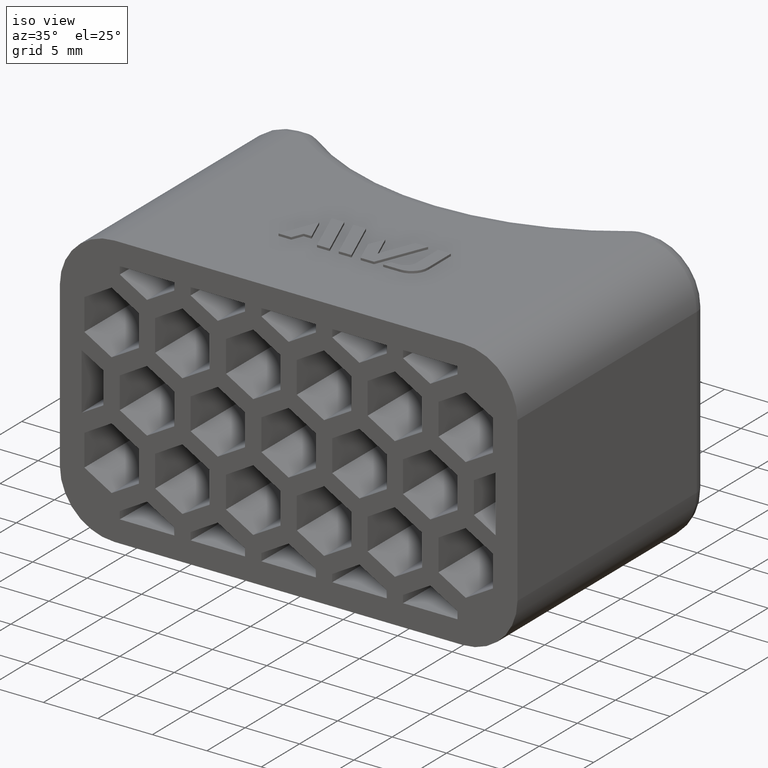
[diagram: clean part render]
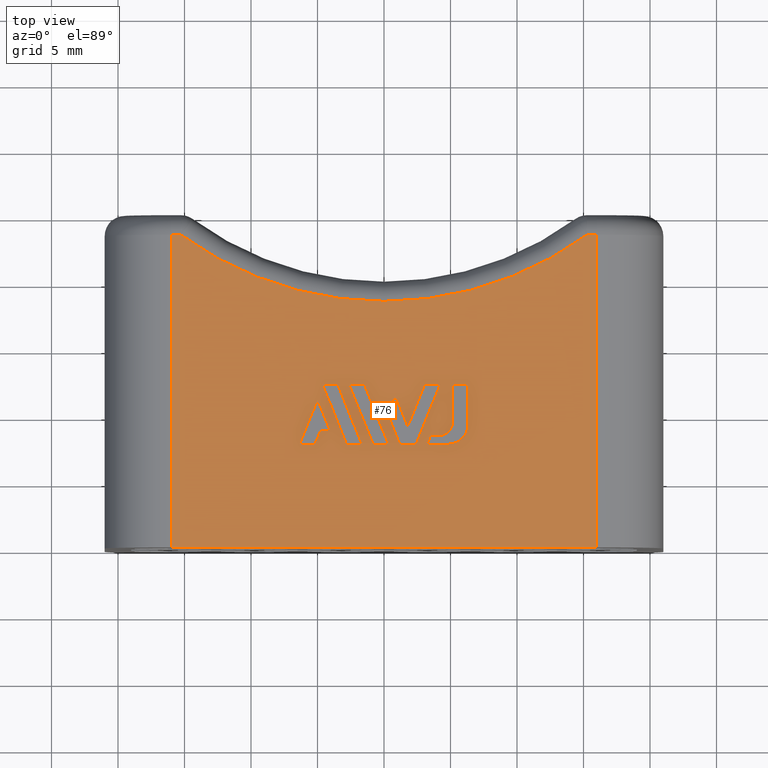
[diagram: tour spotlight — one face highlighted and labeled with its STEP entity id]
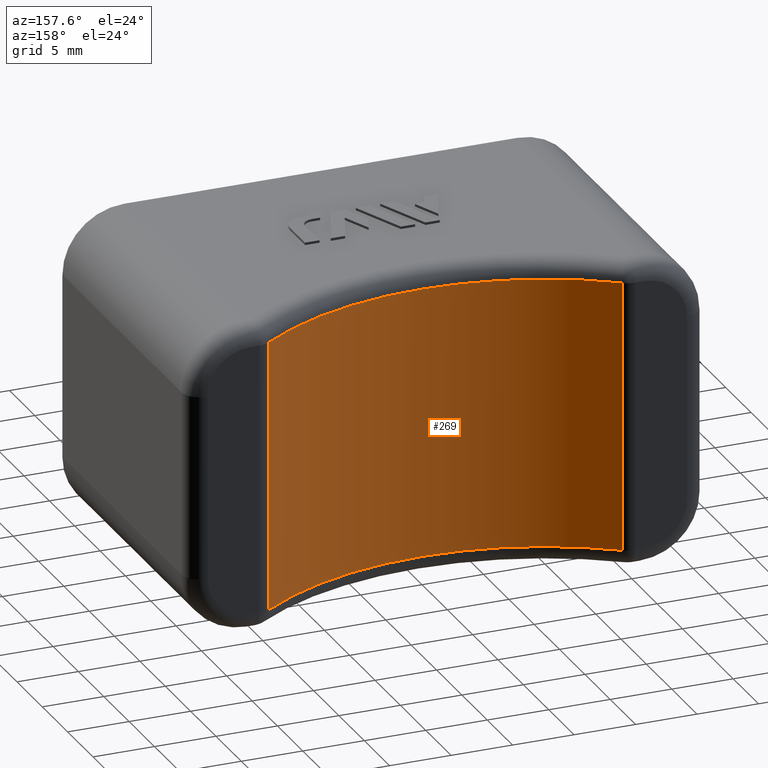
[diagram: tour spotlight — one face highlighted and labeled with its STEP entity id]
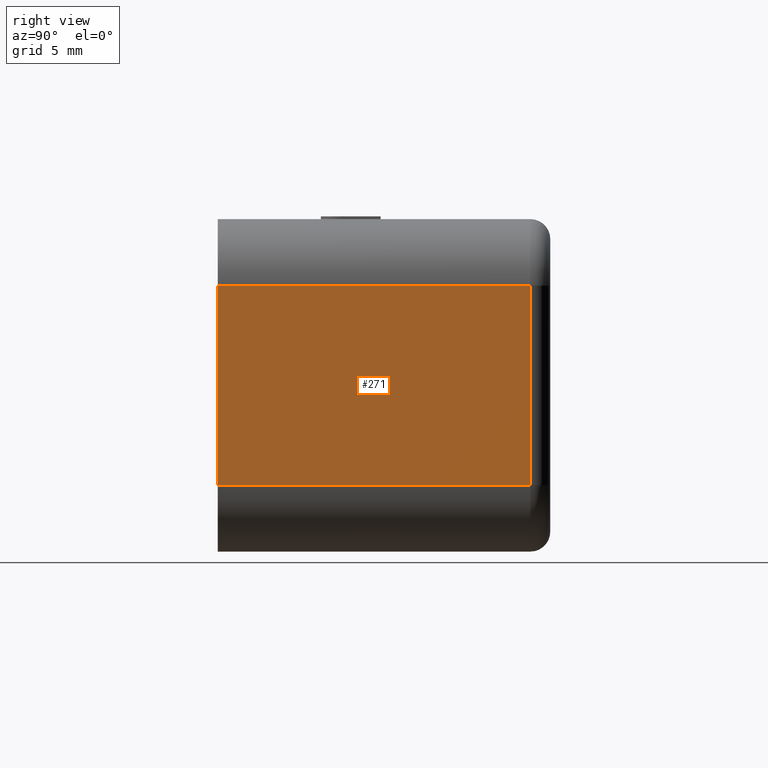
[diagram: tour spotlight — one face highlighted and labeled with its STEP entity id]
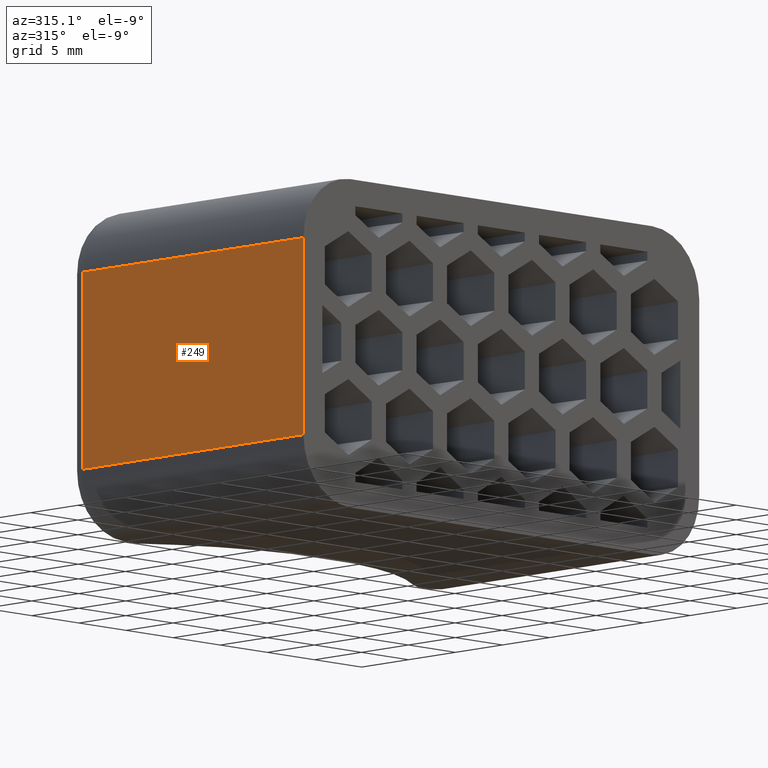
[diagram: tour spotlight — one face highlighted and labeled with its STEP entity id]
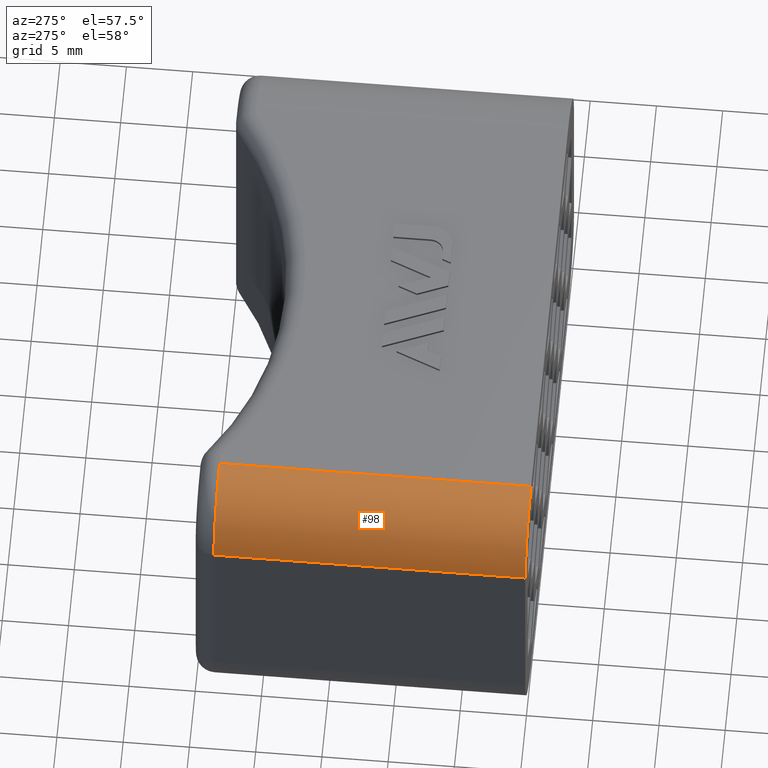
[diagram: tour spotlight — one face highlighted and labeled with its STEP entity id]
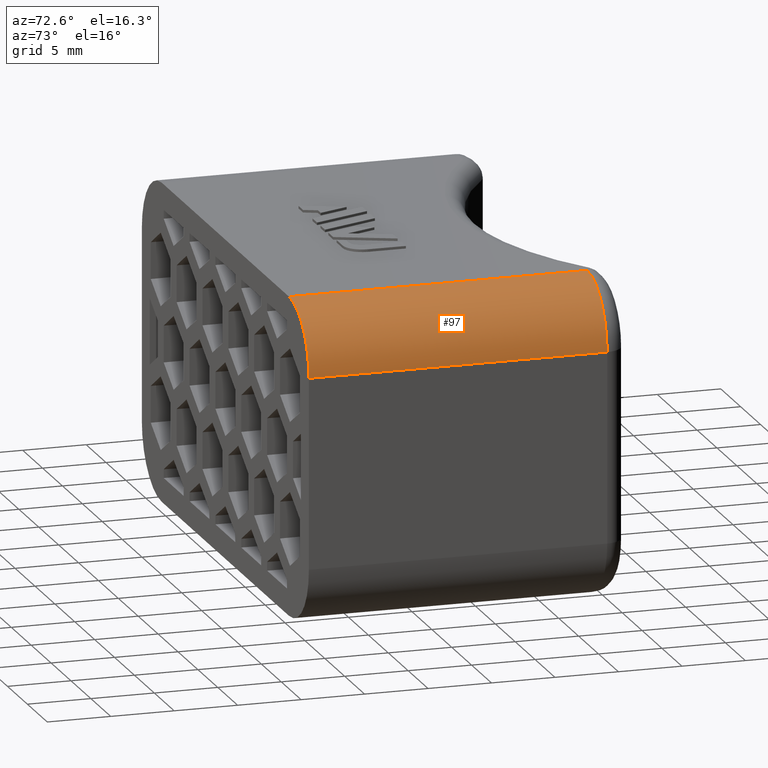
[diagram: tour spotlight — one face highlighted and labeled with its STEP entity id]
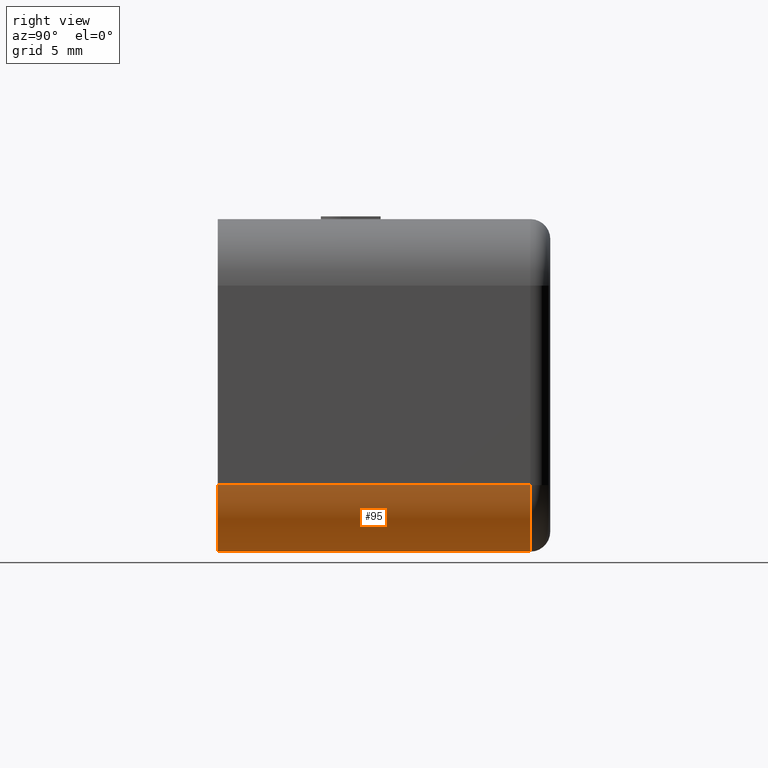
[diagram: tour spotlight — one face highlighted and labeled with its STEP entity id]
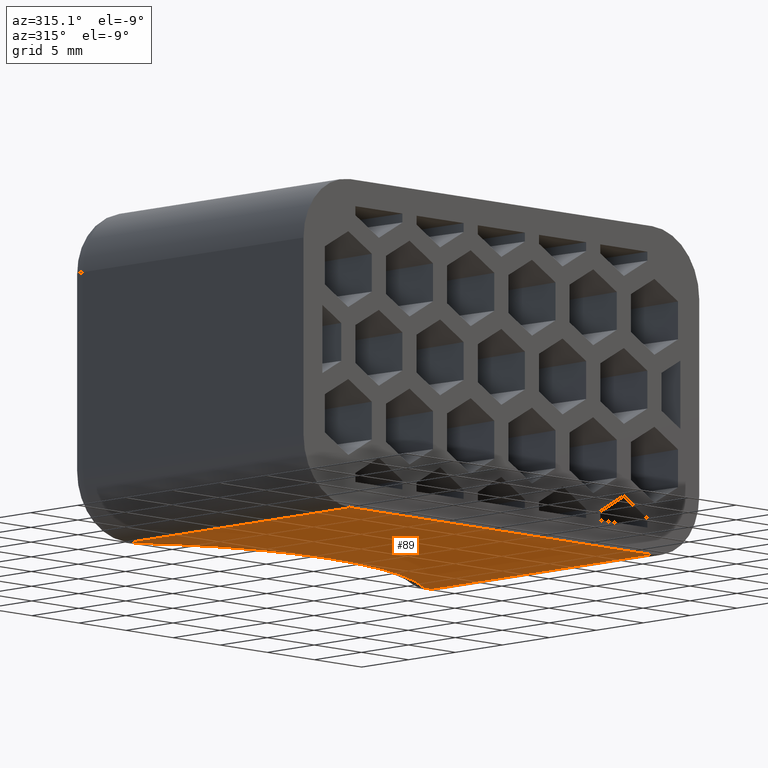
[diagram: tour spotlight — one face highlighted and labeled with its STEP entity id]
A machine part: a face-by-face anatomy tour. The part has 256 B-rep faces; the first image is the clean iso view, then the 8 largest visible faces are spotlighted one at a time (largest first), each with its STEP entity span.

Face 1 — top view, entity #76. In plain terms, the highlighted planar face has unit normal (0, 0, -1).
Definition (entity closure, byte-faithful):
#76 = ADVANCED_FACE( '', ( #363, #364, #365, #366, #367, #368 ), #369, .F. );
#363 = FACE_BOUND( '', #909, .T. );
#364 = FACE_BOUND( '', #910, .T. );
#365 = FACE_BOUND( '', #911, .T. );
#366 = FACE_BOUND( '', #912, .T. );
#367 = FACE_BOUND( '', #913, .T. );
#368 = FACE_OUTER_BOUND( '', #914, .T. );
#369 = PLANE( '', #915 );
#909 = EDGE_LOOP( '', ( #1595, #1596, #1597, #1598, #1599, #1600, #1601, #1602 ) );
#910 = EDGE_LOOP( '', ( #1603, #1604, #1605, #1606 ) );
#911 = EDGE_LOOP( '', ( #1607, #1608, #1609, #1610, #1611 ) );
#912 = EDGE_LOOP( '', ( #1612, #1613, #1614, #1615 ) );
#913 = EDGE_LOOP( '', ( #1616, #1617, #1618, #1619, #1620, #1621, #1622 ) );
#914 = EDGE_LOOP( '', ( #1623, #1624, #1625, #1626, #1627, #1628 ) );
#915 = AXIS2_PLACEMENT_3D( '', #1629, #1630, #1631 );
#1595 = ORIENTED_EDGE( '', *, *, #3640, .F. );
#1596 = ORIENTED_EDGE( '', *, *, #3641, .F. );
#1597 = ORIENTED_EDGE( '', *, *, #3642, .F. );
#1598 = ORIENTED_EDGE( '', *, *, #3643, .F. );
#1599 = ORIENTED_EDGE( '', *, *, #3644, .F. );
#1600 = ORIENTED_EDGE( '', *, *, #3645, .F. );
#1601 = ORIENTED_EDGE( '', *, *, #3646, .F. );
#1602 = ORIENTED_EDGE( '', *, *, #3647, .F. );
#1603 = ORIENTED_EDGE( '', *, *, #3648, .F. );
#1604 = ORIENTED_EDGE( '', *, *, #3649, .F. );
#1605 = ORIENTED_EDGE( '', *, *, #3650, .F. );
#1606 = ORIENTED_EDGE( '', *, *, #3651, .F. );
#1607 = ORIENTED_EDGE( '', *, *, #3652, .F. );
#1608 = ORIENTED_EDGE( '', *, *, #3653, .F. );
#1609 = ORIENTED_EDGE( '', *, *, #3654, .F. );
#1610 = ORIENTED_EDGE( '', *, *, #3655, .F. );
#1611 = ORIENTED_EDGE( '', *, *, #3656, .F. );
#1612 = ORIENTED_EDGE( '', *, *, #3657, .F. );
#1613 = ORIENTED_EDGE( '', *, *, #3658, .F. );
#1614 = ORIENTED_EDGE( '', *, *, #3659, .F. );
#1615 = ORIENTED_EDGE( '', *, *, #3660, .F. );
#1616 = ORIENTED_EDGE( '', *, *, #3661, .F. );
#1617 = ORIENTED_EDGE( '', *, *, #3662, .F. );
#1618 = ORIENTED_EDGE( '', *, *, #3663, .F. );
#1619 = ORIENTED_EDGE( '', *, *, #3664, .F. );
#1620 = ORIENTED_EDGE( '', *, *, #3665, .F. );
#1621 = ORIENTED_EDGE( '', *, *, #3666, .F. );
#1622 = ORIENTED_EDGE( '', *, *, #3667, .F. );
#1623 = ORIENTED_EDGE( '', *, *, #3668, .T. );
#1624 = ORIENTED_EDGE( '', *, *, #3669, .T. );
#1625 = ORIENTED_EDGE( '', *, *, #3670, .T. );
#1626 = ORIENTED_EDGE( '', *, *, #3636, .T. );
#1627 = ORIENTED_EDGE( '', *, *, #3671, .T. );
#1628 = ORIENTED_EDGE( '', *, *, #3672, .T. );
#1629 = CARTESIAN_POINT( '', ( 0.000000000000000, 44.3000000000000, 12.5000000000000 ) );
#1630 = DIRECTION( '', ( 0.000000000000000, 0.000000000000000, -1.00000000000000 ) );
#1631 = DIRECTION( '', ( 0.000000000000000, 1.00000000000000, 0.000000000000000 ) );
#3636 = EDGE_CURVE( '', #4441, #4439, #4442, .T. );
#3640 = EDGE_CURVE( '', #4448, #4449, #4450, .T. );
#3641 = EDGE_CURVE( '', #4451, #4448, #4452, .T. );
#3642 = EDGE_CURVE( '', #4453, #4451, #4454, .T. );
#3643 = EDGE_CURVE( '', #4455, #4453, #4456, .T. );
#3644 = EDGE_CURVE( '', #4457, #4455, #4458, .T. );
#3645 = EDGE_CURVE( '', #4459, #4457, #4460, .T. );
#3646 = EDGE_CURVE( '', #4461, #4459, #4462, .T. );
#3647 = EDGE_CURVE( '', #4449, #4461, #4463, .T. );
#3648 = EDGE_CURVE( '', #4464, #4465, #4466, .T. );
#3649 = EDGE_CURVE( '', #4467, #4464, #4468, .T. );
#3650 = EDGE_CURVE( '', #4469, #4467, #4470, .T. );
#3651 = EDGE_CURVE( '', #4465, #4469, #4471, .T. );
#3652 = EDGE_CURVE( '', #4472, #4473, #4474, .T. );
#3653 = EDGE_CURVE( '', #4475, #4472, #4476, .T. );
#3654 = EDGE_CURVE( '', #4477, #4475, #4478, .T. );
#3655 = EDGE_CURVE( '', #4479, #4477, #4480, .T. );
#3656 = EDGE_CURVE( '', #4473, #4479, #4481, .T. );
#3657 = EDGE_CURVE( '', #4482, #4483, #4484, .T. );
#3658 = EDGE_CURVE( '', #4485, #4482, #4486, .T. );
#3659 = EDGE_CURVE( '', #4487, #4485, #4488, .T. );
#3660 = EDGE_CURVE( '', #4483, #4487, #4489, .T. );
#3661 = EDGE_CURVE( '', #4490, #4491, #4492, .T. );
#3662 = EDGE_CURVE( '', #4493, #4490, #4494, .T. );
#3663 = EDGE_CURVE( '', #4495, #4493, #4496, .T. );
#3664 = EDGE_CURVE( '', #4497, #4495, #4498, .T. );
#3665 = EDGE_CURVE( '', #4499, #4497, #4500, .T. );
#3666 = EDGE_CURVE( '', #4501, #4499, #4502, .T. );
#3667 = EDGE_CURVE( '', #4491, #4501, #4503, .T. );
#3668 = EDGE_CURVE( '', #4504, #4505, #4506, .T. );
#3669 = EDGE_CURVE( '', #4505, #4507, #4508, .T. );
#3670 = EDGE_CURVE( '', #4507, #4441, #4509, .T. );
#3671 = EDGE_CURVE( '', #4439, #4510, #4511, .T. );
#3672 = EDGE_CURVE( '', #4510, #4504, #4512, .T. );
#4439 = VERTEX_POINT( '', #5661 );
#4441 = VERTEX_POINT( '', #5663 );
#4442 = LINE( '', #5664, #5665 );
#4448 = VERTEX_POINT( '', #5672 );
#4449 = VERTEX_POINT( '', #5673 );
#4450 = CIRCLE( '', #5674, 1.50000000000000 );
#4451 = VERTEX_POINT( '', #5675 );
#4452 = LINE( '', #5676, #5677 );
#4453 = VERTEX_POINT( '', #5678 );
#4454 = LINE( '', #5679, #5680 );
#4455 = VERTEX_POINT( '', #5681 );
#4456 = LINE( '', #5682, #5683 );
#4457 = VERTEX_POINT( '', #5684 );
#4458 = CIRCLE( '', #5685, 0.999999999999997 );
#4459 = VERTEX_POINT( '', #5686 );
#4460 = LINE( '', #5687, #5688 );
#4461 = VERTEX_POINT( '', #5689 );
#4462 = LINE( '', #5690, #5691 );
#4463 = LINE( '', #5692, #5693 );
#4464 = VERTEX_POINT( '', #5694 );
#4465 = VERTEX_POINT( '', #5695 );
#4466 = LINE( '', #5696, #5697 );
#4467 = VERTEX_POINT( '', #5698 );
#4468 = LINE( '', #5699, #5700 );
#4469 = VERTEX_POINT( '', #5701 );
#4470 = LINE( '', #5702, #5703 );
#4471 = LINE( '', #5704, #5705 );
#4472 = VERTEX_POINT( '', #5706 );
#4473 = VERTEX_POINT( '', #5707 );
#4474 = LINE( '', #5708, #5709 );
#4475 = VERTEX_POINT( '', #5710 );
#4476 = LINE( '', #5711, #5712 );
#4477 = VERTEX_POINT( '', #5713 );
#4478 = LINE( '', #5714, #5715 );
#4479 = VERTEX_POINT( '', #5716 );
#4480 = LINE( '', #5717, #5718 );
#4481 = LINE( '', #5719, #5720 );
#4482 = VERTEX_POINT( '', #5721 );
#4483 = VERTEX_POINT( '', #5722 );
#4484 = LINE( '', #5723, #5724 );
#4485 = VERTEX_POINT( '', #5725 );
#4486 = LINE( '', #5726, #5727 );
#4487 = VERTEX_POINT( '', #5728 );
#4488 = LINE( '', #5729, #5730 );
#4489 = LINE( '', #5731, #5732 );
#4490 = VERTEX_POINT( '', #5733 );
#4491 = VERTEX_POINT( '', #5734 );
#4492 = LINE( '', #5735, #5736 );
#4493 = VERTEX_POINT( '', #5737 );
#4494 = LINE( '', #5738, #5739 );
#4495 = VERTEX_POINT( '', #5740 );
#4496 = LINE( '', #5741, #5742 );
#4497 = VERTEX_POINT( '', #5743 );
#4498 = LINE( '', #5744, #5745 );
#4499 = VERTEX_POINT( '', #5746 );
#4500 = LINE( '', #5747, #5748 );
#4501 = VERTEX_POINT( '', #5749 );
#4502 = LINE( '', #5750, #5751 );
#4503 = LINE( '', #5752, #5753 );
#4504 = VERTEX_POINT( '', #5754 );
#4505 = VERTEX_POINT( '', #5755 );
#4506 = CIRCLE( '', #5756, 25.8000000000000 );
#4507 = VERTEX_POINT( '', #5757 );
#4508 = LINE( '', #5758, #5759 );
#4509 = LINE( '', #5760, #5761 );
#4510 = VERTEX_POINT( '', #5762 );
#4511 = LINE( '', #5763, #5764 );
#4512 = LINE( '', #5765, #5766 );
#5661 = CARTESIAN_POINT( '', ( 16.0000000000000, -6.93889390390723E-015, 12.5000000000000 ) );
#5663 = CARTESIAN_POINT( '', ( -16.0000000000000, -6.93889390390723E-015, 12.5000000000000 ) );
#5664 = CARTESIAN_POINT( '', ( -46.0000000000000, -6.93889390390723E-015, 12.5000000000000 ) );
#5665 = VECTOR( '', #6910, 1000.00000000000 );
#5672 = CARTESIAN_POINT( '', ( 4.81907477182051, 7.75000000000000, 12.5000000000000 ) );
#5673 = CARTESIAN_POINT( '', ( 6.31907477182050, 9.25000000000000, 12.5000000000000 ) );
#5674 = AXIS2_PLACEMENT_3D( '', #6918, #6919, #6920 );
#5675 = CARTESIAN_POINT( '', ( 3.24098335256638, 7.75000000000000, 12.5000000000000 ) );
#5676 = CARTESIAN_POINT( '', ( 3.24098335256638, 7.75000000000000, 12.5000000000000 ) );
#5677 = VECTOR( '', #6921, 1000.00000000000 );
#5678 = CARTESIAN_POINT( '', ( 3.50517861036021, 8.40390620930045, 12.5000000000000 ) );
#5679 = CARTESIAN_POINT( '', ( 3.50517861036022, 8.40390620930045, 12.5000000000000 ) );
#5680 = VECTOR( '', #6922, 1000.00000000000 );
#5681 = CARTESIAN_POINT( '', ( 4.14390185782692, 8.40390620930043, 12.5000000000000 ) );
#5682 = CARTESIAN_POINT( '', ( 4.14390185782692, 8.40390620930045, 12.5000000000000 ) );
#5683 = VECTOR( '', #6923, 1000.00000000000 );
#5684 = CARTESIAN_POINT( '', ( 5.14390185782692, 9.40390620930043, 12.5000000000000 ) );
#5685 = AXIS2_PLACEMENT_3D( '', #6924, #6925, #6926 );
#5686 = CARTESIAN_POINT( '', ( 5.14390185782692, 12.2467077130809, 12.5000000000000 ) );
#5687 = CARTESIAN_POINT( '', ( 5.14390185782692, 12.2467077130809, 12.5000000000000 ) );
#5688 = VECTOR( '', #6927, 1000.00000000000 );
#5689 = CARTESIAN_POINT( '', ( 6.31907477182050, 12.2467077130809, 12.5000000000000 ) );
#5690 = CARTESIAN_POINT( '', ( 6.31907477182050, 12.2467077130809, 12.5000000000000 ) );
#5691 = VECTOR( '', #6928, 1000.00000000000 );
#5692 = CARTESIAN_POINT( '', ( 6.31907477182050, 9.25000000000000, 12.5000000000000 ) );
#5693 = VECTOR( '', #6929, 1000.00000000000 );
#5694 = CARTESIAN_POINT( '', ( 0.340474419546954, 7.75000000000000, 12.5000000000000 ) );
#5695 = CARTESIAN_POINT( '', ( -1.47650786620465, 12.2467077130809, 12.5000000000000 ) );
#5696 = CARTESIAN_POINT( '', ( 0.340474419546954, 7.75000000000000, 12.5000000000000 ) );
#5697 = VECTOR( '', #6930, 1000.00000000000 );
#5698 = CARTESIAN_POINT( '', ( -0.821505279051991, 7.75000000000000, 12.5000000000000 ) );
#5699 = CARTESIAN_POINT( '', ( -0.821505279051992, 7.75000000000000, 12.5000000000000 ) );
#5700 = VECTOR( '', #6931, 1000.00000000000 );
#5701 = CARTESIAN_POINT( '', ( -2.63848756480360, 12.2467077130809, 12.5000000000000 ) );
#5702 = CARTESIAN_POINT( '', ( -2.63848756480360, 12.2467077130809, 12.5000000000000 ) );
#5703 = VECTOR( '', #6932, 1000.00000000000 );
#5704 = CARTESIAN_POINT( '', ( -1.47650786620465, 12.2467077130809, 12.5000000000000 ) );
#5705 = VECTOR( '', #6933, 1000.00000000000 );
#5706 = CARTESIAN_POINT( '', ( -5.19199839633592, 7.75000000000000, 12.5000000000000 ) );
#5707 = CARTESIAN_POINT( '', ( -4.77208448722876, 8.78856753415103, 12.5000000000000 ) );
#5708 = CARTESIAN_POINT( '', ( -5.19199839633592, 7.75000000000000, 12.5000000000000 ) );
#5709 = VECTOR( '', #6934, 1000.00000000000 );
#5710 = CARTESIAN_POINT( '', ( -6.35364000000000, 7.75000000000000, 12.5000000000000 ) );
#5711 = CARTESIAN_POINT( '', ( -6.35364000000000, 7.75000000000000, 12.5000000000000 ) );
#5712 = VECTOR( '', #6935, 1000.00000000000 );
#5713 = CARTESIAN_POINT( '', ( -4.99163582471184, 11.1215127433957, 12.5000000000000 ) );
#5714 = CARTESIAN_POINT( '', ( -4.99163582471184, 11.1215127433957, 12.5000000000000 ) );
#5715 = VECTOR( '', #6936, 1000.00000000000 );
#5716 = CARTESIAN_POINT( '', ( -4.04950047920620, 8.78856753415103, 12.5000000000000 ) );
#5717 = CARTESIAN_POINT( '', ( -4.04950047920620, 8.78856753415103, 12.5000000000000 ) );
#5718 = VECTOR( '', #6937, 1000.00000000000 );
#5719 = CARTESIAN_POINT( '', ( -4.77208448722876, 8.78856753415103, 12.5000000000000 ) );
#5720 = VECTOR( '', #6938, 1000.00000000000 );
#5721 = CARTESIAN_POINT( '', ( -1.65762156620353, 7.75000000000000, 12.5000000000000 ) );
#5722 = CARTESIAN_POINT( '', ( -3.47460385195514, 12.2467077130809, 12.5000000000000 ) );
#5723 = CARTESIAN_POINT( '', ( -1.65762156620353, 7.75000000000000, 12.5000000000000 ) );
#5724 = VECTOR( '', #6939, 1000.00000000000 );
#5725 = CARTESIAN_POINT( '', ( -2.81951861937395, 7.75000000000000, 12.5000000000000 ) );
#5726 = CARTESIAN_POINT( '', ( -2.81951861937395, 7.75000000000000, 12.5000000000000 ) );
#5727 = VECTOR( '', #6940, 1000.00000000000 );
#5728 = CARTESIAN_POINT( '', ( -4.63624545561922, 12.2467077130809, 12.5000000000000 ) );
#5729 = CARTESIAN_POINT( '', ( -4.63624545561922, 12.2467077130809, 12.5000000000000 ) );
#5730 = VECTOR( '', #6941, 1000.00000000000 );
#5731 = CARTESIAN_POINT( '', ( -3.47460385195514, 12.2467077130809, 12.5000000000000 ) );
#5732 = VECTOR( '', #6942, 1000.00000000000 );
#5733 = CARTESIAN_POINT( '', ( 2.40489711829795, 7.75000000000000, 12.5000000000000 ) );
#5734 = CARTESIAN_POINT( '', ( 4.22159390166011, 12.2467077130809, 12.5000000000000 ) );
#5735 = CARTESIAN_POINT( '', ( 2.40489711829795, 7.75000000000000, 12.5000000000000 ) );
#5736 = VECTOR( '', #6943, 1000.00000000000 );
#5737 = CARTESIAN_POINT( '', ( 1.17656065381540, 7.75000000000000, 12.5000000000000 ) );
#5738 = CARTESIAN_POINT( '', ( 1.17656065381540, 7.75000000000000, 12.5000000000000 ) );
#5739 = VECTOR( '', #6944, 1000.00000000000 );
#5740 = CARTESIAN_POINT( '', ( 0.250796616378179, 10.0409463051131, 12.5000000000000 ) );
#5741 = CARTESIAN_POINT( '', ( 0.250796616378178, 10.0409463051131, 12.5000000000000 ) );
#5742 = VECTOR( '', #6945, 1000.00000000000 );
#5743 = CARTESIAN_POINT( '', ( 0.831793978898428, 11.4792171844870, 12.5000000000000 ) );
#5744 = CARTESIAN_POINT( '', ( 0.831793978898429, 11.4792171844869, 12.5000000000000 ) );
#5745 = VECTOR( '', #6946, 1000.00000000000 );
#5746 = CARTESIAN_POINT( '', ( 1.79060116130350, 9.10619645562918, 12.5000000000000 ) );
#5747 = CARTESIAN_POINT( '', ( 1.79060116130350, 9.10619645562919, 12.5000000000000 ) );
#5748 = VECTOR( '', #6947, 1000.00000000000 );
#5749 = CARTESIAN_POINT( '', ( 3.05959917661961, 12.2467077130809, 12.5000000000000 ) );
#5750 = CARTESIAN_POINT( '', ( 3.05959917661961, 12.2467077130809, 12.5000000000000 ) );
#5751 = VECTOR( '', #6948, 1000.00000000000 );
#5752 = CARTESIAN_POINT( '', ( 4.22159390166011, 12.2467077130809, 12.5000000000000 ) );
#5753 = VECTOR( '', #6949, 1000.00000000000 );
#5754 = CARTESIAN_POINT( '', ( 15.2643375224738, 23.5000000000000, 12.5000000000000 ) );
#5755 = CARTESIAN_POINT( '', ( -15.2643375224738, 23.5000000000000, 12.5000000000000 ) );
#5756 = AXIS2_PLACEMENT_3D( '', #6950, #6951, #6952 );
#5757 = CARTESIAN_POINT( '', ( -16.0000000000000, 23.5000000000000, 12.5000000000000 ) );
#5758 = CARTESIAN_POINT( '', ( -16.0000000000000, 23.5000000000000, 12.5000000000000 ) );
#5759 = VECTOR( '', #6953, 1000.00000000000 );
#5760 = CARTESIAN_POINT( '', ( -16.0000000000000, 1.99999999999999, 12.5000000000000 ) );
#5761 = VECTOR( '', #6954, 1000.00000000000 );
#5762 = CARTESIAN_POINT( '', ( 16.0000000000000, 23.5000000000000, 12.5000000000000 ) );
#5763 = CARTESIAN_POINT( '', ( 16.0000000000000, 25.0000000000000, 12.5000000000000 ) );
#5764 = VECTOR( '', #6955, 1000.00000000000 );
#5765 = CARTESIAN_POINT( '', ( 14.7648230602334, 23.5000000000000, 12.5000000000000 ) );
#5766 = VECTOR( '', #6956, 1000.00000000000 );
#6910 = DIRECTION( '', ( 1.00000000000000, 0.000000000000000, 0.000000000000000 ) );
#6918 = CARTESIAN_POINT( '', ( 4.81907477182050, 9.25000000000000, 12.5000000000000 ) );
#6919 = DIRECTION( '', ( 0.000000000000000, 0.000000000000000, 1.00000000000000 ) );
#6920 = DIRECTION( '', ( 0.000000000000000, -1.00000000000000, 0.000000000000000 ) );
#6921 = DIRECTION( '', ( 1.00000000000000, 0.000000000000000, 0.000000000000000 ) );
#6922 = DIRECTION( '', ( -0.374606593415912, -0.927183854566787, 0.000000000000000 ) );
#6923 = DIRECTION( '', ( -1.00000000000000, 0.000000000000000, 0.000000000000000 ) );
#6924 = CARTESIAN_POINT( '', ( 4.14390185782692, 9.40390620930043, 12.5000000000000 ) );
#6925 = DIRECTION( '', ( 0.000000000000000, 0.000000000000000, -1.00000000000000 ) );
#6926 = DIRECTION( '', ( 1.00000000000000, 0.000000000000000, 0.000000000000000 ) );
#6927 = DIRECTION( '', ( -6.07153216591882E-017, -1.00000000000000, 0.000000000000000 ) );
#6928 = DIRECTION( '', ( -1.00000000000000, 0.000000000000000, 0.000000000000000 ) );
#6929 = DIRECTION( '', ( 6.07153216591882E-017, 1.00000000000000, 0.000000000000000 ) );
#6930 = DIRECTION( '', ( -0.374641058409019, 0.927169929060563, 0.000000000000000 ) );
#6931 = DIRECTION( '', ( 1.00000000000000, -2.22044604925031E-016, 0.000000000000000 ) );
#6932 = DIRECTION( '', ( 0.374641058409019, -0.927169929060563, 0.000000000000000 ) );
#6933 = DIRECTION( '', ( -1.00000000000000, 2.22044604925031E-016, 0.000000000000000 ) );
#6934 = DIRECTION( '', ( 0.374840934415178, 0.927089140205383, 0.000000000000000 ) );
#6935 = DIRECTION( '', ( 1.00000000000000, 5.55111512312578E-017, 0.000000000000000 ) );
#6936 = DIRECTION( '', ( -0.374565126786346, -0.927200607094025, 0.000000000000000 ) );
#6937 = DIRECTION( '', ( -0.374457717202846, 0.927243990558706, 0.000000000000000 ) );
#6938 = DIRECTION( '', ( 1.00000000000000, 0.000000000000000, 0.000000000000000 ) );
#6939 = DIRECTION( '', ( -0.374641058409019, 0.927169929060563, 0.000000000000000 ) );
#6940 = DIRECTION( '', ( 1.00000000000000, 0.000000000000000, 0.000000000000000 ) );
#6941 = DIRECTION( '', ( 0.374595778945159, -0.927188223823226, 0.000000000000000 ) );
#6942 = DIRECTION( '', ( -1.00000000000000, 0.000000000000000, 0.000000000000000 ) );
#6943 = DIRECTION( '', ( 0.374590451773198, 0.927190376050330, 0.000000000000000 ) );
#6944 = DIRECTION( '', ( 1.00000000000000, 0.000000000000000, 0.000000000000000 ) );
#6945 = DIRECTION( '', ( 0.374662832411421, -0.927161130553612, 0.000000000000000 ) );
#6946 = DIRECTION( '', ( -0.374550179126525, -0.927206645422846, 0.000000000000000 ) );
#6947 = DIRECTION( '', ( -0.374621565025663, 0.927177805503196, 0.000000000000000 ) );
#6948 = DIRECTION( '', ( -0.374644435760503, -0.927168564368796, 0.000000000000000 ) );
#6949 = DIRECTION( '', ( -1.00000000000000, 0.000000000000000, 0.000000000000000 ) );
#6950 = CARTESIAN_POINT( '', ( 0.000000000000000, 44.3000000000000, 12.5000000000000 ) );
#6951 = DIRECTION( '', ( 0.000000000000000, 0.000000000000000, -1.00000000000000 ) );
#6952 = DIRECTION( '', ( -1.00000000000000, 0.000000000000000, 0.000000000000000 ) );
#6953 = DIRECTION( '', ( -1.00000000000000, 0.000000000000000, 0.000000000000000 ) );
#6954 = DIRECTION( '', ( -6.93889390390723E-017, -1.00000000000000, 0.000000000000000 ) );
#6955 = DIRECTION( '', ( 6.93889390390723E-017, 1.00000000000000, 0.000000000000000 ) );
#6956 = DIRECTION( '', ( -1.00000000000000, 0.000000000000000, 0.000000000000000 ) );

Face 2 — auxiliary view, entity #269. In plain terms, the highlighted cylindrical surface (partial cylindrical patch) has radius 24.3 mm, axis along (0, 0, -1).
Definition (entity closure, byte-faithful):
#269 = ADVANCED_FACE( '', ( #754 ), #755, .F. );
#754 = FACE_OUTER_BOUND( '', #1300, .T. );
#755 = CYLINDRICAL_SURFACE( '', #1301, 24.3000000000000 );
#1300 = EDGE_LOOP( '', ( #3004, #3005, #3006, #3007 ) );
#1301 = AXIS2_PLACEMENT_3D( '', #3008, #3009, #3010 );
#3004 = ORIENTED_EDGE( '', *, *, #3705, .T. );
#3005 = ORIENTED_EDGE( '', *, *, #3713, .T. );
#3006 = ORIENTED_EDGE( '', *, *, #4049, .T. );
#3007 = ORIENTED_EDGE( '', *, *, #4050, .T. );
#3008 = CARTESIAN_POINT( '', ( 0.000000000000000, 44.3000000000000, -12.5000000000000 ) );
#3009 = DIRECTION( '', ( 0.000000000000000, 0.000000000000000, -1.00000000000000 ) );
#3010 = DIRECTION( '', ( 0.000000000000000, -1.00000000000000, 0.000000000000000 ) );
#3705 = EDGE_CURVE( '', #4561, #4563, #4565, .T. );
#3713 = EDGE_CURVE( '', #4563, #4574, #4576, .T. );
#4049 = EDGE_CURVE( '', #4574, #5082, #5083, .F. );
#4050 = EDGE_CURVE( '', #5082, #4561, #5084, .F. );
#4561 = VERTEX_POINT( '', #5836 );
#4563 = VERTEX_POINT( '', #5838 );
#4565 = CIRCLE( '', #5840, 24.3000000000000 );
#4574 = VERTEX_POINT( '', #5850 );
#4576 = LINE( '', #5852, #5853 );
#5082 = VERTEX_POINT( '', #6606 );
#5083 = CIRCLE( '', #6607, 24.3000000000000 );
#5084 = LINE( '', #6608, #6609 );
#5836 = CARTESIAN_POINT( '', ( 14.3768760386090, 24.7093023255814, -11.0000000000000 ) );
#5838 = CARTESIAN_POINT( '', ( -14.3768760386090, 24.7093023255814, -11.0000000000000 ) );
#5840 = AXIS2_PLACEMENT_3D( '', #7011, #7012, #7013 );
#5850 = CARTESIAN_POINT( '', ( -14.3768760386090, 24.7093023255814, 11.0000000000000 ) );
#5852 = CARTESIAN_POINT( '', ( -14.3768760386090, 24.7093023255814, -12.5000000000000 ) );
#5853 = VECTOR( '', #7033, 1000.00000000000 );
#6606 = CARTESIAN_POINT( '', ( 14.3768760386090, 24.7093023255814, 11.0000000000000 ) );
#6607 = AXIS2_PLACEMENT_3D( '', #7545, #7546, #7547 );
#6608 = CARTESIAN_POINT( '', ( 14.3768760386090, 24.7093023255814, -12.5000000000000 ) );
#6609 = VECTOR( '', #7548, 1000.00000000000 );
#7011 = CARTESIAN_POINT( '', ( 0.000000000000000, 44.3000000000000, -11.0000000000000 ) );
#7012 = DIRECTION( '', ( 0.000000000000000, 0.000000000000000, -1.00000000000000 ) );
#7013 = DIRECTION( '', ( -1.00000000000000, 0.000000000000000, 0.000000000000000 ) );
#7033 = DIRECTION( '', ( 0.000000000000000, 0.000000000000000, 1.00000000000000 ) );
#7545 = CARTESIAN_POINT( '', ( 0.000000000000000, 44.3000000000000, 11.0000000000000 ) );
#7546 = DIRECTION( '', ( 0.000000000000000, 0.000000000000000, -1.00000000000000 ) );
#7547 = DIRECTION( '', ( -1.00000000000000, 0.000000000000000, 0.000000000000000 ) );
#7548 = DIRECTION( '', ( 0.000000000000000, 0.000000000000000, 1.00000000000000 ) );

Face 3 — right view, entity #271. In plain terms, the highlighted planar face has unit normal (1, -0, 0).
Definition (entity closure, byte-faithful):
#271 = ADVANCED_FACE( '', ( #758 ), #759, .T. );
#758 = FACE_OUTER_BOUND( '', #1304, .T. );
#759 = PLANE( '', #1305 );
#1304 = EDGE_LOOP( '', ( #3020, #3021, #3022, #3023 ) );
#1305 = AXIS2_PLACEMENT_3D( '', #3024, #3025, #3026 );
#3020 = ORIENTED_EDGE( '', *, *, #3716, .T. );
#3021 = ORIENTED_EDGE( '', *, *, #4057, .T. );
#3022 = ORIENTED_EDGE( '', *, *, #3718, .T. );
#3023 = ORIENTED_EDGE( '', *, *, #3634, .F. );
#3024 = CARTESIAN_POINT( '', ( 21.0000000000000, 1.99999999999999, -12.5000000000000 ) );
#3025 = DIRECTION( '', ( 1.00000000000000, -6.93889390390723E-017, 0.000000000000000 ) );
#3026 = DIRECTION( '', ( -6.93889390390723E-017, -1.00000000000000, 0.000000000000000 ) );
#3634 = EDGE_CURVE( '', #4435, #4437, #4438, .T. );
#3716 = EDGE_CURVE( '', #4435, #4578, #4580, .T. );
#3718 = EDGE_CURVE( '', #4582, #4437, #4583, .F. );
#4057 = EDGE_CURVE( '', #4578, #4582, #5097, .T. );
#4435 = VERTEX_POINT( '', #5656 );
#4437 = VERTEX_POINT( '', #5658 );
#4438 = LINE( '', #5659, #5660 );
#4578 = VERTEX_POINT( '', #5856 );
#4580 = LINE( '', #5858, #5859 );
#4582 = VERTEX_POINT( '', #5862 );
#4583 = LINE( '', #5863, #5864 );
#5097 = LINE( '', #6626, #6627 );
#5656 = CARTESIAN_POINT( '', ( 21.0000000000000, -6.93889390390723E-015, -7.50000000000001 ) );
#5658 = CARTESIAN_POINT( '', ( 21.0000000000000, 0.000000000000000, 7.50000000000002 ) );
#5659 = CARTESIAN_POINT( '', ( 21.0000000000000, -6.93889390390723E-015, -12.5000000000000 ) );
#5660 = VECTOR( '', #6906, 1000.00000000000 );
#5856 = CARTESIAN_POINT( '', ( 21.0000000000000, 23.5000000000000, -7.50000000000000 ) );
#5858 = CARTESIAN_POINT( '', ( 21.0000000000000, 1.99999999999999, -7.50000000000000 ) );
#5859 = VECTOR( '', #7038, 1000.00000000000 );
#5862 = CARTESIAN_POINT( '', ( 21.0000000000000, 23.5000000000000, 7.50000000000000 ) );
#5863 = CARTESIAN_POINT( '', ( 21.0000000000000, 1.99999999999999, 7.50000000000000 ) );
#5864 = VECTOR( '', #7040, 1000.00000000000 );
#6626 = CARTESIAN_POINT( '', ( 21.0000000000000, 23.5000000000000, -12.5000000000000 ) );
#6627 = VECTOR( '', #7559, 1000.00000000000 );
#6906 = DIRECTION( '', ( 2.95286543775261E-032, 0.000000000000000, 1.00000000000000 ) );
#7038 = DIRECTION( '', ( 6.93889390390723E-017, 1.00000000000000, 0.000000000000000 ) );
#7040 = DIRECTION( '', ( 6.93889390390723E-017, 1.00000000000000, 0.000000000000000 ) );
#7559 = DIRECTION( '', ( 0.000000000000000, 0.000000000000000, 1.00000000000000 ) );

Face 4 — auxiliary view, entity #249. In plain terms, the highlighted planar face has unit normal (-1, 0, 0).
Definition (entity closure, byte-faithful):
#249 = ADVANCED_FACE( '', ( #714 ), #715, .T. );
#714 = FACE_OUTER_BOUND( '', #1260, .T. );
#715 = PLANE( '', #1261 );
#1260 = EDGE_LOOP( '', ( #2851, #2852, #2853, #2854 ) );
#1261 = AXIS2_PLACEMENT_3D( '', #2855, #2856, #2857 );
#2851 = ORIENTED_EDGE( '', *, *, #3720, .T. );
#2852 = ORIENTED_EDGE( '', *, *, #3692, .T. );
#2853 = ORIENTED_EDGE( '', *, *, #3717, .T. );
#2854 = ORIENTED_EDGE( '', *, *, #3638, .F. );
#2855 = CARTESIAN_POINT( '', ( -21.0000000000000, 25.0000000000000, -12.5000000000000 ) );
#2856 = DIRECTION( '', ( -1.00000000000000, 6.93889390390723E-017, 0.000000000000000 ) );
#2857 = DIRECTION( '', ( 6.93889390390723E-017, 1.00000000000000, 0.000000000000000 ) );
#3638 = EDGE_CURVE( '', #4443, #4445, #4446, .T. );
#3692 = EDGE_CURVE( '', #4537, #4542, #4544, .F. );
#3717 = EDGE_CURVE( '', #4542, #4445, #4581, .T. );
#3720 = EDGE_CURVE( '', #4443, #4537, #4585, .F. );
#4443 = VERTEX_POINT( '', #5666 );
#4445 = VERTEX_POINT( '', #5668 );
#4446 = LINE( '', #5669, #5670 );
#4537 = VERTEX_POINT( '', #5805 );
#4542 = VERTEX_POINT( '', #5811 );
#4544 = LINE( '', #5813, #5814 );
#4581 = LINE( '', #5860, #5861 );
#4585 = LINE( '', #5866, #5867 );
#5666 = CARTESIAN_POINT( '', ( -21.0000000000000, -6.93889390390723E-015, 7.50000000000003 ) );
#5668 = CARTESIAN_POINT( '', ( -21.0000000000000, -1.38777878078145E-014, -7.49999999999999 ) );
#5669 = CARTESIAN_POINT( '', ( -21.0000000000000, -6.93889390390723E-015, -12.5000000000000 ) );
#5670 = VECTOR( '', #6914, 1000.00000000000 );
#5805 = CARTESIAN_POINT( '', ( -21.0000000000000, 23.5000000000000, 7.50000000000000 ) );
#5811 = CARTESIAN_POINT( '', ( -21.0000000000000, 23.5000000000000, -7.50000000000000 ) );
#5813 = CARTESIAN_POINT( '', ( -21.0000000000000, 23.5000000000000, -12.5000000000000 ) );
#5814 = VECTOR( '', #6984, 1000.00000000000 );
#5860 = CARTESIAN_POINT( '', ( -21.0000000000000, 25.0000000000000, -7.50000000000000 ) );
#5861 = VECTOR( '', #7039, 1000.00000000000 );
#5866 = CARTESIAN_POINT( '', ( -21.0000000000000, 25.0000000000000, 7.50000000000000 ) );
#5867 = VECTOR( '', #7044, 1000.00000000000 );
#6914 = DIRECTION( '', ( -2.95286543775261E-032, 0.000000000000000, -1.00000000000000 ) );
#6984 = DIRECTION( '', ( 0.000000000000000, 0.000000000000000, 1.00000000000000 ) );
#7039 = DIRECTION( '', ( -6.93889390390723E-017, -1.00000000000000, 0.000000000000000 ) );
#7044 = DIRECTION( '', ( -6.93889390390723E-017, -1.00000000000000, 0.000000000000000 ) );

Face 5 — auxiliary view, entity #98. In plain terms, the highlighted cylindrical surface (partial cylindrical patch) has radius 5 mm, axis along (-0, -1, 0).
Definition (entity closure, byte-faithful):
#98 = ADVANCED_FACE( '', ( #412 ), #413, .T. );
#412 = FACE_OUTER_BOUND( '', #958, .T. );
#413 = CYLINDRICAL_SURFACE( '', #959, 5.00000000000000 );
#958 = EDGE_LOOP( '', ( #1784, #1785, #1786, #1787 ) );
#959 = AXIS2_PLACEMENT_3D( '', #1788, #1789, #1790 );
#1784 = ORIENTED_EDGE( '', *, *, #3670, .F. );
#1785 = ORIENTED_EDGE( '', *, *, #3709, .T. );
#1786 = ORIENTED_EDGE( '', *, *, #3720, .F. );
#1787 = ORIENTED_EDGE( '', *, *, #3637, .F. );
#1788 = CARTESIAN_POINT( '', ( -16.0000000000000, 44.3000000000000, 7.50000000000000 ) );
#1789 = DIRECTION( '', ( -6.93889390390723E-017, -1.00000000000000, 0.000000000000000 ) );
#1790 = DIRECTION( '', ( -1.00000000000000, 6.93889390390723E-017, 0.000000000000000 ) );
#3637 = EDGE_CURVE( '', #4441, #4443, #4444, .T. );
#3670 = EDGE_CURVE( '', #4507, #4441, #4509, .T. );
#3709 = EDGE_CURVE( '', #4507, #4537, #4570, .F. );
#3720 = EDGE_CURVE( '', #4443, #4537, #4585, .F. );
#4441 = VERTEX_POINT( '', #5663 );
#4443 = VERTEX_POINT( '', #5666 );
#4444 = CIRCLE( '', #5667, 4.99999999999998 );
#4507 = VERTEX_POINT( '', #5757 );
#4509 = LINE( '', #5760, #5761 );
#4537 = VERTEX_POINT( '', #5805 );
#4570 = CIRCLE( '', #5845, 5.00000000000000 );
#4585 = LINE( '', #5866, #5867 );
#5663 = CARTESIAN_POINT( '', ( -16.0000000000000, -6.93889390390723E-015, 12.5000000000000 ) );
#5666 = CARTESIAN_POINT( '', ( -21.0000000000000, -6.93889390390723E-015, 7.50000000000003 ) );
#5667 = AXIS2_PLACEMENT_3D( '', #6911, #6912, #6913 );
#5757 = CARTESIAN_POINT( '', ( -16.0000000000000, 23.5000000000000, 12.5000000000000 ) );
#5760 = CARTESIAN_POINT( '', ( -16.0000000000000, 1.99999999999999, 12.5000000000000 ) );
#5761 = VECTOR( '', #6954, 1000.00000000000 );
#5805 = CARTESIAN_POINT( '', ( -21.0000000000000, 23.5000000000000, 7.50000000000000 ) );
#5845 = AXIS2_PLACEMENT_3D( '', #7023, #7024, #7025 );
#5866 = CARTESIAN_POINT( '', ( -21.0000000000000, 25.0000000000000, 7.50000000000000 ) );
#5867 = VECTOR( '', #7044, 1000.00000000000 );
#6911 = CARTESIAN_POINT( '', ( -16.0000000000000, -6.93889390390723E-015, 7.50000000000002 ) );
#6912 = DIRECTION( '', ( 0.000000000000000, -1.00000000000000, 0.000000000000000 ) );
#6913 = DIRECTION( '', ( 0.000000000000000, 0.000000000000000, -1.00000000000000 ) );
#6954 = DIRECTION( '', ( -6.93889390390723E-017, -1.00000000000000, 0.000000000000000 ) );
#7023 = CARTESIAN_POINT( '', ( -16.0000000000000, 23.5000000000000, 7.50000000000000 ) );
#7024 = DIRECTION( '', ( 0.000000000000000, 1.00000000000000, 0.000000000000000 ) );
#7025 = DIRECTION( '', ( 0.000000000000000, 0.000000000000000, 1.00000000000000 ) );
#7044 = DIRECTION( '', ( -6.93889390390723E-017, -1.00000000000000, 0.000000000000000 ) );

Face 6 — auxiliary view, entity #97. In plain terms, the highlighted cylindrical surface (partial cylindrical patch) has radius 5 mm, axis along (0, 1, 0).
Definition (entity closure, byte-faithful):
#97 = ADVANCED_FACE( '', ( #410 ), #411, .T. );
#410 = FACE_OUTER_BOUND( '', #956, .T. );
#411 = CYLINDRICAL_SURFACE( '', #957, 5.00000000000000 );
#956 = EDGE_LOOP( '', ( #1777, #1778, #1779, #1780 ) );
#957 = AXIS2_PLACEMENT_3D( '', #1781, #1782, #1783 );
#1777 = ORIENTED_EDGE( '', *, *, #3718, .F. );
#1778 = ORIENTED_EDGE( '', *, *, #3719, .T. );
#1779 = ORIENTED_EDGE( '', *, *, #3671, .F. );
#1780 = ORIENTED_EDGE( '', *, *, #3635, .F. );
#1781 = CARTESIAN_POINT( '', ( 16.0000000000000, 44.3000000000000, 7.50000000000000 ) );
#1782 = DIRECTION( '', ( 6.93889390390723E-017, 1.00000000000000, 0.000000000000000 ) );
#1783 = DIRECTION( '', ( 1.00000000000000, -6.93889390390723E-017, 0.000000000000000 ) );
#3635 = EDGE_CURVE( '', #4437, #4439, #4440, .T. );
#3671 = EDGE_CURVE( '', #4439, #4510, #4511, .T. );
#3718 = EDGE_CURVE( '', #4582, #4437, #4583, .F. );
#3719 = EDGE_CURVE( '', #4582, #4510, #4584, .F. );
#4437 = VERTEX_POINT( '', #5658 );
#4439 = VERTEX_POINT( '', #5661 );
#4440 = CIRCLE( '', #5662, 4.99999999999998 );
#4510 = VERTEX_POINT( '', #5762 );
#4511 = LINE( '', #5763, #5764 );
#4582 = VERTEX_POINT( '', #5862 );
#4583 = LINE( '', #5863, #5864 );
#4584 = CIRCLE( '', #5865, 5.00000000000000 );
#5658 = CARTESIAN_POINT( '', ( 21.0000000000000, 0.000000000000000, 7.50000000000002 ) );
#5661 = CARTESIAN_POINT( '', ( 16.0000000000000, -6.93889390390723E-015, 12.5000000000000 ) );
#5662 = AXIS2_PLACEMENT_3D( '', #6907, #6908, #6909 );
#5762 = CARTESIAN_POINT( '', ( 16.0000000000000, 23.5000000000000, 12.5000000000000 ) );
#5763 = CARTESIAN_POINT( '', ( 16.0000000000000, 25.0000000000000, 12.5000000000000 ) );
#5764 = VECTOR( '', #6955, 1000.00000000000 );
#5862 = CARTESIAN_POINT( '', ( 21.0000000000000, 23.5000000000000, 7.50000000000000 ) );
#5863 = CARTESIAN_POINT( '', ( 21.0000000000000, 1.99999999999999, 7.50000000000000 ) );
#5864 = VECTOR( '', #7040, 1000.00000000000 );
#5865 = AXIS2_PLACEMENT_3D( '', #7041, #7042, #7043 );
#6907 = CARTESIAN_POINT( '', ( 16.0000000000000, 0.000000000000000, 7.50000000000002 ) );
#6908 = DIRECTION( '', ( 0.000000000000000, -1.00000000000000, 0.000000000000000 ) );
#6909 = DIRECTION( '', ( 0.000000000000000, 0.000000000000000, -1.00000000000000 ) );
#6955 = DIRECTION( '', ( 6.93889390390723E-017, 1.00000000000000, 0.000000000000000 ) );
#7040 = DIRECTION( '', ( 6.93889390390723E-017, 1.00000000000000, 0.000000000000000 ) );
#7041 = CARTESIAN_POINT( '', ( 16.0000000000000, 23.5000000000000, 7.50000000000000 ) );
#7042 = DIRECTION( '', ( 0.000000000000000, 1.00000000000000, 0.000000000000000 ) );
#7043 = DIRECTION( '', ( 0.000000000000000, 0.000000000000000, 1.00000000000000 ) );

Face 7 — right view, entity #95. In plain terms, the highlighted cylindrical surface (partial cylindrical patch) has radius 5 mm, axis along (-0, -1, 0).
Definition (entity closure, byte-faithful):
#95 = ADVANCED_FACE( '', ( #406 ), #407, .T. );
#406 = FACE_OUTER_BOUND( '', #952, .T. );
#407 = CYLINDRICAL_SURFACE( '', #953, 5.00000000000000 );
#952 = EDGE_LOOP( '', ( #1763, #1764, #1765, #1766 ) );
#953 = AXIS2_PLACEMENT_3D( '', #1767, #1768, #1769 );
#1763 = ORIENTED_EDGE( '', *, *, #3702, .F. );
#1764 = ORIENTED_EDGE( '', *, *, #3715, .T. );
#1765 = ORIENTED_EDGE( '', *, *, #3716, .F. );
#1766 = ORIENTED_EDGE( '', *, *, #3633, .F. );
#1767 = CARTESIAN_POINT( '', ( 16.0000000000000, 1.99999999999999, -7.50000000000000 ) );
#1768 = DIRECTION( '', ( -6.93889390390723E-017, -1.00000000000000, 0.000000000000000 ) );
#1769 = DIRECTION( '', ( -1.00000000000000, 6.93889390390723E-017, 0.000000000000000 ) );
#3633 = EDGE_CURVE( '', #4433, #4435, #4436, .T. );
#3702 = EDGE_CURVE( '', #4558, #4433, #4560, .F. );
#3715 = EDGE_CURVE( '', #4558, #4578, #4579, .F. );
#3716 = EDGE_CURVE( '', #4435, #4578, #4580, .T. );
#4433 = VERTEX_POINT( '', #5653 );
#4435 = VERTEX_POINT( '', #5656 );
#4436 = CIRCLE( '', #5657, 5.00000000000000 );
#4558 = VERTEX_POINT( '', #5831 );
#4560 = LINE( '', #5834, #5835 );
#4578 = VERTEX_POINT( '', #5856 );
#4579 = CIRCLE( '', #5857, 5.00000000000000 );
#4580 = LINE( '', #5858, #5859 );
#5653 = CARTESIAN_POINT( '', ( 16.0000000000000, -6.93889390390723E-015, -12.5000000000000 ) );
#5656 = CARTESIAN_POINT( '', ( 21.0000000000000, -6.93889390390723E-015, -7.50000000000001 ) );
#5657 = AXIS2_PLACEMENT_3D( '', #6903, #6904, #6905 );
#5831 = CARTESIAN_POINT( '', ( 16.0000000000000, 23.5000000000000, -12.5000000000000 ) );
#5834 = CARTESIAN_POINT( '', ( 16.0000000000000, 44.3000000000000, -12.5000000000000 ) );
#5835 = VECTOR( '', #7004, 1000.00000000000 );
#5856 = CARTESIAN_POINT( '', ( 21.0000000000000, 23.5000000000000, -7.50000000000000 ) );
#5857 = AXIS2_PLACEMENT_3D( '', #7035, #7036, #7037 );
#5858 = CARTESIAN_POINT( '', ( 21.0000000000000, 1.99999999999999, -7.50000000000000 ) );
#5859 = VECTOR( '', #7038, 1000.00000000000 );
#6903 = CARTESIAN_POINT( '', ( 16.0000000000000, 0.000000000000000, -7.50000000000000 ) );
#6904 = DIRECTION( '', ( 0.000000000000000, -1.00000000000000, 0.000000000000000 ) );
#6905 = DIRECTION( '', ( 0.000000000000000, 0.000000000000000, -1.00000000000000 ) );
#7004 = DIRECTION( '', ( 6.93889390390723E-017, 1.00000000000000, 0.000000000000000 ) );
#7035 = CARTESIAN_POINT( '', ( 16.0000000000000, 23.5000000000000, -7.50000000000000 ) );
#7036 = DIRECTION( '', ( 0.000000000000000, 1.00000000000000, 0.000000000000000 ) );
#7037 = DIRECTION( '', ( 0.000000000000000, 0.000000000000000, 1.00000000000000 ) );
#7038 = DIRECTION( '', ( 6.93889390390723E-017, 1.00000000000000, 0.000000000000000 ) );

Face 8 — auxiliary view, entity #89. In plain terms, the highlighted planar face has unit normal (0, 0, -1).
Definition (entity closure, byte-faithful):
#89 = ADVANCED_FACE( '', ( #394 ), #395, .T. );
#394 = FACE_OUTER_BOUND( '', #940, .T. );
#395 = PLANE( '', #941 );
#940 = EDGE_LOOP( '', ( #1720, #1721, #1722, #1723, #1724, #1725 ) );
#941 = AXIS2_PLACEMENT_3D( '', #1726, #1727, #1728 );
#1720 = ORIENTED_EDGE( '', *, *, #3699, .T. );
#1721 = ORIENTED_EDGE( '', *, *, #3697, .T. );
#1722 = ORIENTED_EDGE( '', *, *, #3700, .T. );
#1723 = ORIENTED_EDGE( '', *, *, #3701, .T. );
#1724 = ORIENTED_EDGE( '', *, *, #3702, .T. );
#1725 = ORIENTED_EDGE( '', *, *, #3632, .F. );
#1726 = CARTESIAN_POINT( '', ( 0.000000000000000, 44.3000000000000, -12.5000000000000 ) );
#1727 = DIRECTION( '', ( 0.000000000000000, 0.000000000000000, -1.00000000000000 ) );
#1728 = DIRECTION( '', ( 0.000000000000000, 1.00000000000000, 0.000000000000000 ) );
#3632 = EDGE_CURVE( '', #4432, #4433, #4434, .T. );
#3697 = EDGE_CURVE( '', #4546, #4551, #4553, .F. );
#3699 = EDGE_CURVE( '', #4432, #4546, #4555, .F. );
#3700 = EDGE_CURVE( '', #4551, #4556, #4557, .F. );
#3701 = EDGE_CURVE( '', #4556, #4558, #4559, .F. );
#3702 = EDGE_CURVE( '', #4558, #4433, #4560, .F. );
#4432 = VERTEX_POINT( '', #5652 );
#4433 = VERTEX_POINT( '', #5653 );
#4434 = LINE( '', #5654, #5655 );
#4546 = VERTEX_POINT( '', #5816 );
#4551 = VERTEX_POINT( '', #5821 );
#4553 = LINE( '', #5823, #5824 );
#4555 = LINE( '', #5827, #5828 );
#4556 = VERTEX_POINT( '', #5829 );
#4557 = CIRCLE( '', #5830, 25.8000000000000 );
#4558 = VERTEX_POINT( '', #5831 );
#4559 = LINE( '', #5832, #5833 );
#4560 = LINE( '', #5834, #5835 );
#5652 = CARTESIAN_POINT( '', ( -16.0000000000000, -6.93889390390723E-015, -12.5000000000000 ) );
#5653 = CARTESIAN_POINT( '', ( 16.0000000000000, -6.93889390390723E-015, -12.5000000000000 ) );
#5654 = CARTESIAN_POINT( '', ( -46.0000000000000, -6.93889390390723E-015, -12.5000000000000 ) );
#5655 = VECTOR( '', #6902, 1000.00000000000 );
#5816 = CARTESIAN_POINT( '', ( -16.0000000000000, 23.5000000000000, -12.5000000000000 ) );
#5821 = CARTESIAN_POINT( '', ( -15.2643375224738, 23.5000000000000, -12.5000000000000 ) );
#5823 = CARTESIAN_POINT( '', ( 0.000000000000000, 23.5000000000000, -12.5000000000000 ) );
#5824 = VECTOR( '', #6997, 1000.00000000000 );
#5827 = CARTESIAN_POINT( '', ( -16.0000000000000, 44.3000000000000, -12.5000000000000 ) );
#5828 = VECTOR( '', #6999, 1000.00000000000 );
#5829 = CARTESIAN_POINT( '', ( 15.2643375224738, 23.5000000000000, -12.5000000000000 ) );
#5830 = AXIS2_PLACEMENT_3D( '', #7000, #7001, #7002 );
#5831 = CARTESIAN_POINT( '', ( 16.0000000000000, 23.5000000000000, -12.5000000000000 ) );
#5832 = CARTESIAN_POINT( '', ( 0.000000000000000, 23.5000000000000, -12.5000000000000 ) );
#5833 = VECTOR( '', #7003, 1000.00000000000 );
#5834 = CARTESIAN_POINT( '', ( 16.0000000000000, 44.3000000000000, -12.5000000000000 ) );
#5835 = VECTOR( '', #7004, 1000.00000000000 );
#6902 = DIRECTION( '', ( 1.00000000000000, 0.000000000000000, 0.000000000000000 ) );
#6997 = DIRECTION( '', ( -1.00000000000000, 0.000000000000000, 0.000000000000000 ) );
#6999 = DIRECTION( '', ( -6.93889390390723E-017, -1.00000000000000, 0.000000000000000 ) );
#7000 = CARTESIAN_POINT( '', ( 0.000000000000000, 44.3000000000000, -12.5000000000000 ) );
#7001 = DIRECTION( '', ( 0.000000000000000, 0.000000000000000, -1.00000000000000 ) );
#7002 = DIRECTION( '', ( -1.00000000000000, 0.000000000000000, 0.000000000000000 ) );
#7003 = DIRECTION( '', ( -1.00000000000000, 0.000000000000000, 0.000000000000000 ) );
#7004 = DIRECTION( '', ( 6.93889390390723E-017, 1.00000000000000, 0.000000000000000 ) );